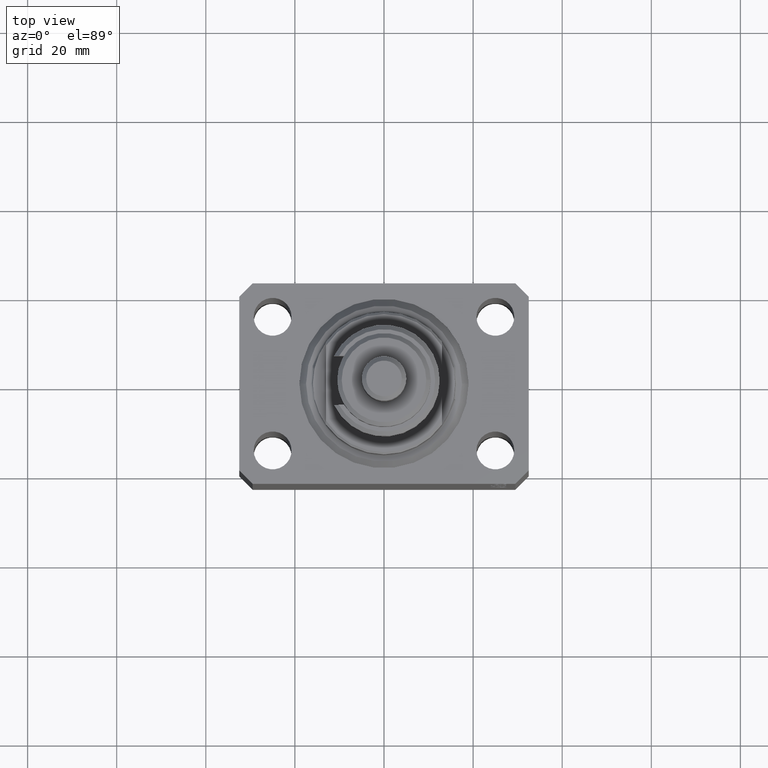
[diagram: clean part render]
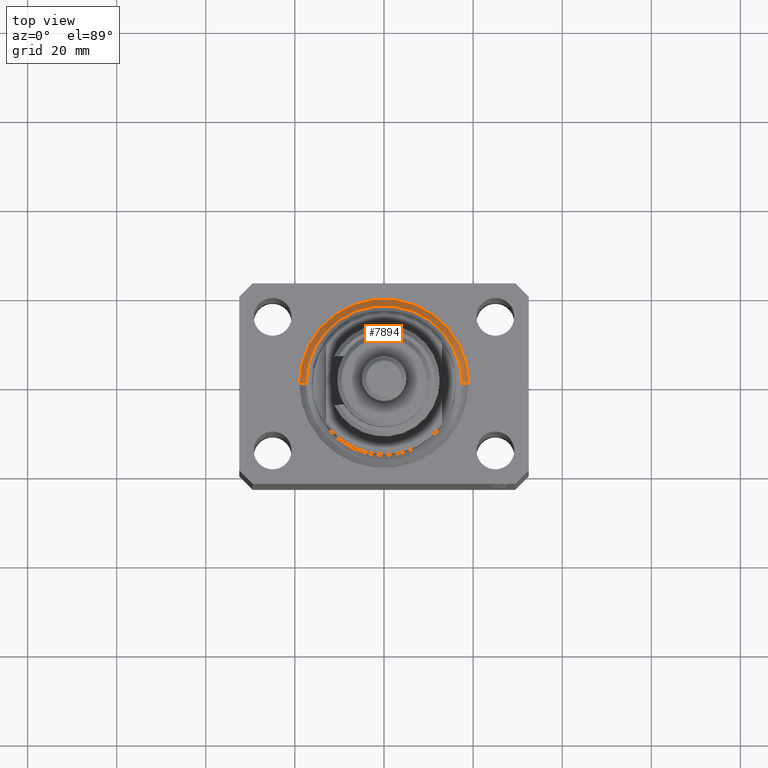
[diagram: same view with one face highlighted and labeled with its STEP entity id]
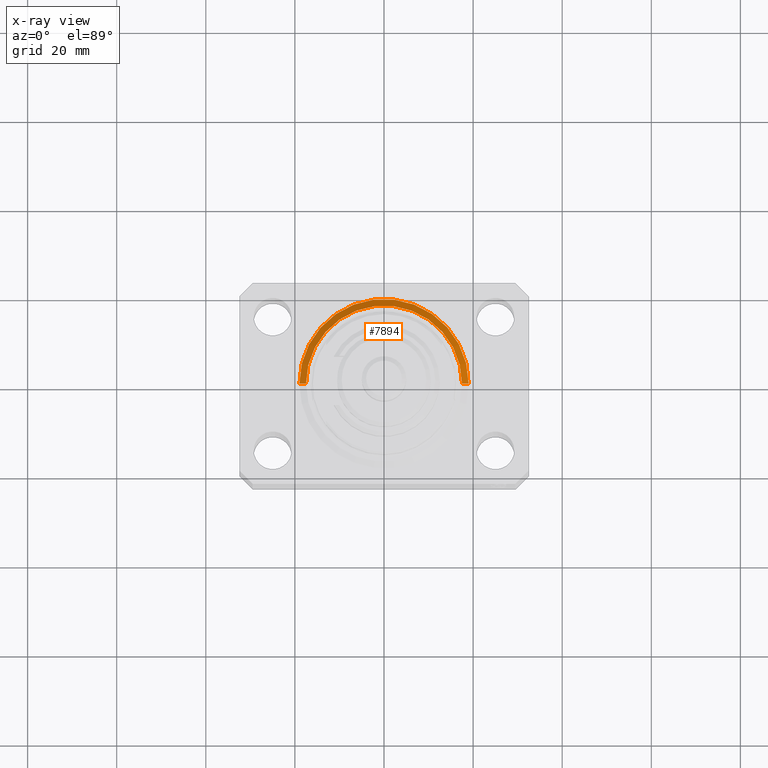
[diagram: x-ray of the same camera — body ghosted, the highlighted face saturated]
A machine part, top view. The second image highlights one B-rep face of the part: STEP entity #7894.
The next image is the same camera in x-ray: the body ghosted, the highlighted face saturated — about 0% of this face is hidden behind the body in this view.
In plain terms, the highlighted conical surface has half-angle 45 deg.
Its self-contained STEP definition (entity closure, byte-faithful):
#285 = CARTESIAN_POINT ( 'NONE',  ( 17.49999999999999645, 0.000000000000000000, 0.000000000000000000 ) ) ;
#1652 = ORIENTED_EDGE ( 'NONE', *, *, #26442, .F. ) ;
#2160 = CARTESIAN_POINT ( 'NONE',  ( 19.00000000000000000, 2.326828918379970970E-15, 1.500000000000001332 ) ) ;
#4240 = EDGE_CURVE ( 'NONE', #30279, #29506, #30480, .T. ) ;
#4289 = DIRECTION ( 'NONE',  ( -0.000000000000000000, -0.000000000000000000, -1.000000000000000000 ) ) ;
#4431 = LINE ( 'NONE', #15494, #26647 ) ;
#7009 = FACE_OUTER_BOUND ( 'NONE', #30908, .T. ) ;
#7655 = DIRECTION ( 'NONE',  ( -0.7071067811865483499, 8.659560562354942719E-17, 0.7071067811865467956 ) ) ;
#7894 = ADVANCED_FACE ( 'NONE', ( #7009 ), #17949, .T. ) ;
#8379 = CARTESIAN_POINT ( 'NONE',  ( 0.000000000000000000, 0.000000000000000000, 0.000000000000000000 ) ) ;
#10612 = DIRECTION ( 'NONE',  ( 1.000000000000000000, 0.000000000000000000, 0.000000000000000000 ) ) ;
#12001 = CIRCLE ( 'NONE', #38835, 17.49999999999999645 ) ;
#12617 = CARTESIAN_POINT ( 'NONE',  ( -17.49999999999999645, 2.234980408443919215E-15, 0.000000000000000000 ) ) ;
#12909 = CIRCLE ( 'NONE', #15976, 19.00000000000000000 ) ;
#14708 = CARTESIAN_POINT ( 'NONE',  ( -19.00000000000000000, 0.000000000000000000, 1.500000000000001332 ) ) ;
#14926 = DIRECTION ( 'NONE',  ( 1.000000000000000000, 0.000000000000000000, 0.000000000000000000 ) ) ;
#15494 = CARTESIAN_POINT ( 'NONE',  ( 19.00000000000000000, 0.000000000000000000, 1.500000000000001332 ) ) ;
#15976 = AXIS2_PLACEMENT_3D ( 'NONE', #31770, #43500, #10612 ) ;
#17949 = CONICAL_SURFACE ( 'NONE', #21802, 19.00000000000000000, 0.7853981633974492782 ) ;
#21467 = VERTEX_POINT ( 'NONE', #2160 ) ;
#21802 = AXIS2_PLACEMENT_3D ( 'NONE', #47355, #36312, #14926 ) ;
#23198 = DIRECTION ( 'NONE',  ( 0.7071067811865483499, 0.000000000000000000, 0.7071067811865467956 ) ) ;
#23906 = EDGE_CURVE ( 'NONE', #30279, #29491, #12001, .T. ) ;
#26442 = EDGE_CURVE ( 'NONE', #29491, #21467, #4431, .T. ) ;
#26647 = VECTOR ( 'NONE', #23198, 1000.000000000000000 ) ;
#29491 = VERTEX_POINT ( 'NONE', #285 ) ;
#29506 = VERTEX_POINT ( 'NONE', #14708 ) ;
#30279 = VERTEX_POINT ( 'NONE', #12617 ) ;
#30480 = LINE ( 'NONE', #40554, #35517 ) ;
#30496 = DIRECTION ( 'NONE',  ( 1.000000000000000000, 0.000000000000000000, 0.000000000000000000 ) ) ;
#30908 = EDGE_LOOP ( 'NONE', ( #43906, #42728, #46527, #1652 ) ) ;
#31530 = EDGE_CURVE ( 'NONE', #21467, #29506, #12909, .T. ) ;
#31770 = CARTESIAN_POINT ( 'NONE',  ( 0.000000000000000000, 0.000000000000000000, 1.500000000000001332 ) ) ;
#35517 = VECTOR ( 'NONE', #7655, 1000.000000000000000 ) ;
#36312 = DIRECTION ( 'NONE',  ( -0.000000000000000000, -0.000000000000000000, 1.000000000000000000 ) ) ;
#38835 = AXIS2_PLACEMENT_3D ( 'NONE', #8379, #4289, #30496 ) ;
#40554 = CARTESIAN_POINT ( 'NONE',  ( -19.00000000000000000, 2.326828918379970970E-15, 1.500000000000001332 ) ) ;
#42728 = ORIENTED_EDGE ( 'NONE', *, *, #4240, .T. ) ;
#43500 = DIRECTION ( 'NONE',  ( -0.000000000000000000, -0.000000000000000000, 1.000000000000000000 ) ) ;
#43906 = ORIENTED_EDGE ( 'NONE', *, *, #23906, .F. ) ;
#46527 = ORIENTED_EDGE ( 'NONE', *, *, #31530, .F. ) ;
#47355 = CARTESIAN_POINT ( 'NONE',  ( 0.000000000000000000, 0.000000000000000000, 1.500000000000001332 ) ) ;